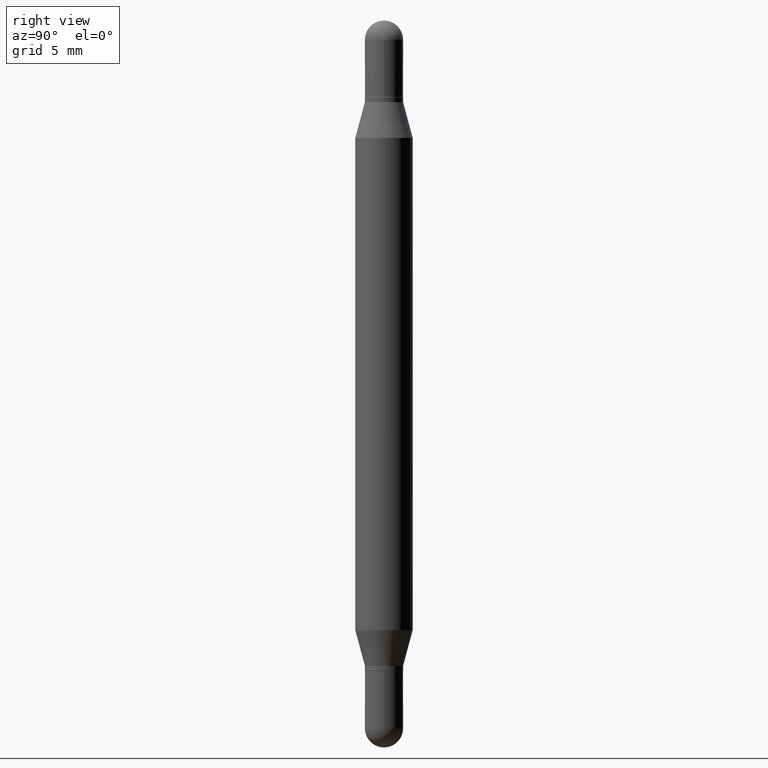
[diagram: clean part render]
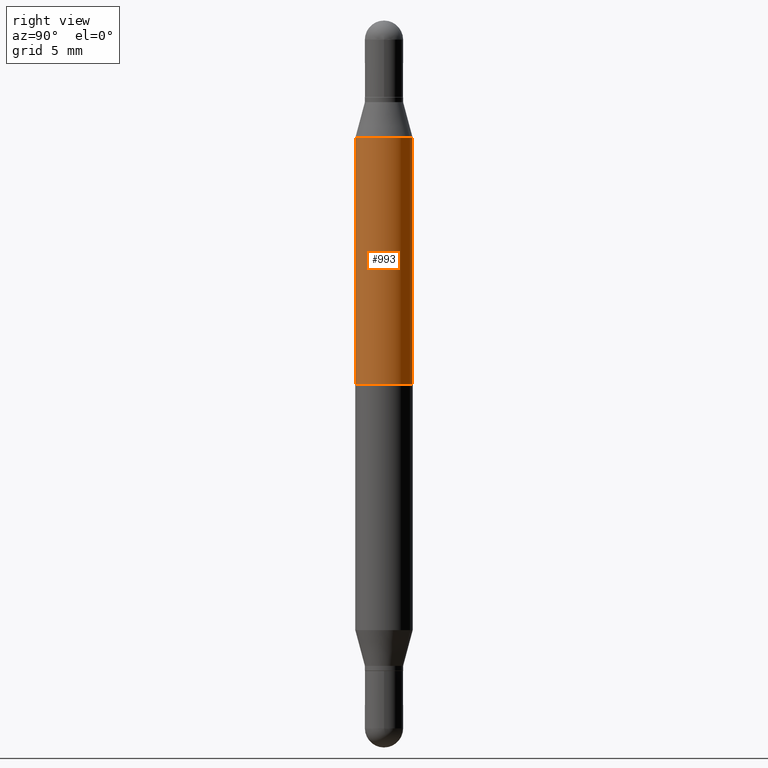
[diagram: same view with one face highlighted and labeled with its STEP entity id]
A machine part, right view. The second image highlights one B-rep face of the part: STEP entity #993.
In plain terms, the highlighted cylindrical surface (edge-blend (fillet) strip) has radius 1.4999 mm, axis along (-0, -0, -1).
Its self-contained STEP definition (entity closure, byte-faithful):
#32 = VERTEX_POINT ( 'NONE', #728 ) ;
#38 = CARTESIAN_POINT ( 'NONE',  ( -4.123439461173740327E-16, -0.05905000000000522331, -1.496099999999999541 ) ) ;
#110 = AXIS2_PLACEMENT_3D ( 'NONE', #1055, #172, #958 ) ;
#115 = AXIS2_PLACEMENT_3D ( 'NONE', #985, #204, #970 ) ;
#119 = ORIENTED_EDGE ( 'NONE', *, *, #299, .F. ) ;
#132 = ORIENTED_EDGE ( 'NONE', *, *, #479, .F. ) ;
#165 = VECTOR ( 'NONE', #899, 39.37007874015748143 ) ;
#172 = DIRECTION ( 'NONE',  ( 2.445676712903946009E-29, 3.479912201232478588E-15, 1.000000000000000000 ) ) ;
#204 = DIRECTION ( 'NONE',  ( -2.445676712903946009E-29, -3.479912201232478588E-15, -1.000000000000000000 ) ) ;
#284 = FACE_OUTER_BOUND ( 'NONE', #1063, .T. ) ;
#299 = EDGE_CURVE ( 'NONE', #523, #32, #804, .T. ) ;
#363 = CIRCLE ( 'NONE', #724, 0.05905000000000000526 ) ;
#374 = DIRECTION ( 'NONE',  ( -2.445676712903946009E-29, -3.479912201232478588E-15, -1.000000000000000000 ) ) ;
#408 = CARTESIAN_POINT ( 'NONE',  ( 4.051124067684395845E-16, 0.05904999999999915178, -0.2415214009091070368 ) ) ;
#479 = EDGE_CURVE ( 'NONE', #488, #523, #603, .T. ) ;
#488 = VERTEX_POINT ( 'NONE', #620 ) ;
#523 = VERTEX_POINT ( 'NONE', #408 ) ;
#563 = LINE ( 'NONE', #38, #707 ) ;
#583 = ORIENTED_EDGE ( 'NONE', *, *, #891, .T. ) ;
#585 = EDGE_CURVE ( 'NONE', #32, #929, #363, .T. ) ;
#603 = CIRCLE ( 'NONE', #110, 0.05904999999999999832 ) ;
#620 = CARTESIAN_POINT ( 'NONE',  ( -4.123439461173433657E-16, -0.05905000000000084487, -0.2415214009091066205 ) ) ;
#635 = CYLINDRICAL_SURFACE ( 'NONE', #115, 0.05905000000000000526 ) ;
#678 = ORIENTED_EDGE ( 'NONE', *, *, #585, .F. ) ;
#707 = VECTOR ( 'NONE', #374, 39.37007874015748143 ) ;
#724 = AXIS2_PLACEMENT_3D ( 'NONE', #1103, #742, #1093 ) ;
#728 = CARTESIAN_POINT ( 'NONE',  ( 4.051124067684334215E-16, 0.05904999999999739624, -0.7480500000000002148 ) ) ;
#742 = DIRECTION ( 'NONE',  ( -0.000000000000000000, -3.485547902910486918E-15, -1.000000000000000000 ) ) ;
#804 = LINE ( 'NONE', #821, #165 ) ;
#821 = CARTESIAN_POINT ( 'NONE',  ( 4.051124067684089175E-16, 0.05904999999999479415, -1.496100000000000207 ) ) ;
#891 = EDGE_CURVE ( 'NONE', #488, #929, #563, .T. ) ;
#899 = DIRECTION ( 'NONE',  ( -2.445676712903946009E-29, -3.479912201232478588E-15, -1.000000000000000000 ) ) ;
#909 = CARTESIAN_POINT ( 'NONE',  ( -4.123439461173556424E-16, -0.05905000000000262123, -0.7480499999999996597 ) ) ;
#929 = VERTEX_POINT ( 'NONE', #909 ) ;
#958 = DIRECTION ( 'NONE',  ( -6.982962677686265922E-15, -1.000000000000000000, 3.469747663417777397E-15 ) ) ;
#970 = DIRECTION ( 'NONE',  ( -6.982962677686265922E-15, -1.000000000000000000, 4.626330217890369336E-15 ) ) ;
#985 = CARTESIAN_POINT ( 'NONE',  ( 0.000000000000000000, -5.214728217544379106E-15, -1.496099999999999985 ) ) ;
#993 = ADVANCED_FACE ( 'NONE', ( #284 ), #635, .T. ) ;
#1055 = CARTESIAN_POINT ( 'NONE',  ( 3.068293664304252923E-29, -8.489048431628303814E-16, -0.2415214009091068426 ) ) ;
#1063 = EDGE_LOOP ( 'NONE', ( #119, #132, #583, #678 ) ) ;
#1093 = DIRECTION ( 'NONE',  ( 0.000000000000000000, 1.000000000000000000, -4.626330217890369336E-15 ) ) ;
#1103 = CARTESIAN_POINT ( 'NONE',  ( 1.829488465087796786E-29, -2.611579895412423726E-15, -0.7480499999999999927 ) ) ;